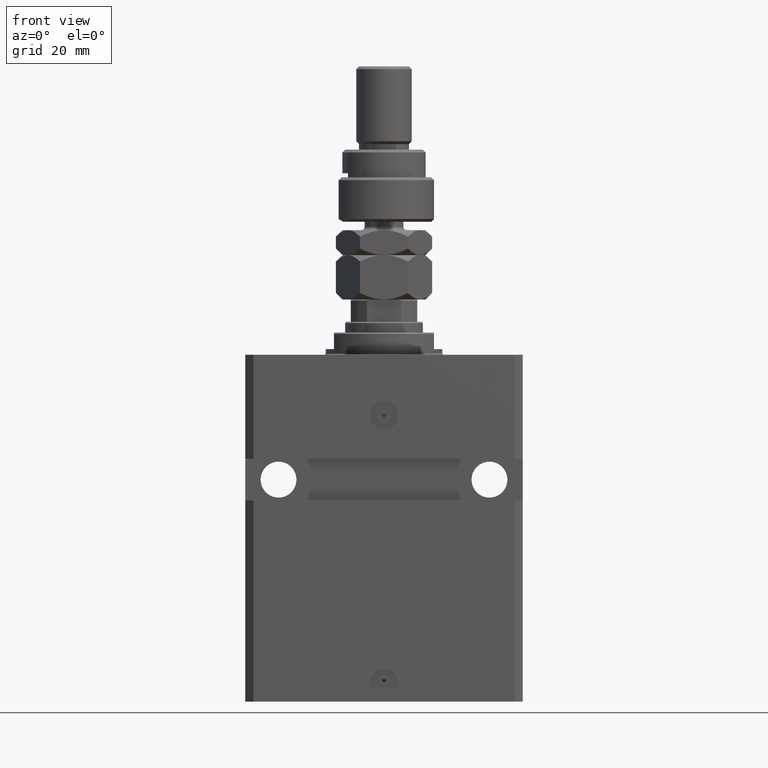
[diagram: clean part render]
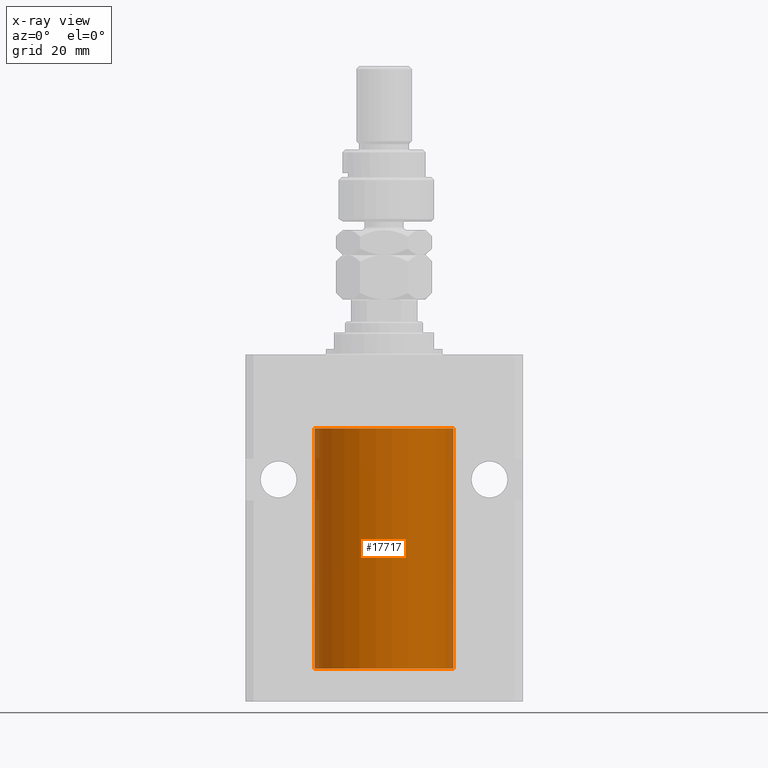
[diagram: x-ray — body ghosted, one internal face saturated and labeled with its STEP entity id]
A machine part, front view, then the same camera in x-ray: the body is ghosted and one INTERNAL B-rep face — a face not visible from any outside direction — is saturated and labeled: STEP entity #17717.
In plain terms, the highlighted cylindrical surface (partial cylindrical patch) has radius 25 mm, axis along (0, 0, 1).
Its self-contained STEP definition (entity closure, byte-faithful):
#454 = CARTESIAN_POINT ( 'NONE',  ( -24.99812796309119634, -0.3269516851027584048, -109.9429046887702128 ) ) ;
#697 = DIRECTION ( 'NONE',  ( -0.000000000000000000, -0.000000000000000000, 1.000000000000000000 ) ) ;
#1135 = CARTESIAN_POINT ( 'NONE',  ( 25.00000000000000000, -2.424731304940744339E-15, -111.1250000000000000 ) ) ;
#1331 = DIRECTION ( 'NONE',  ( -0.000000000000000000, -0.000000000000000000, 1.000000000000000000 ) ) ;
#1995 = CARTESIAN_POINT ( 'NONE',  ( -25.00000000000008171, 3.517566575222595158E-13, -111.1250000000032827 ) ) ;
#2157 = LINE ( 'NONE', #18161, #41108 ) ;
#2401 = CARTESIAN_POINT ( 'NONE',  ( 24.99813006673834792, -0.3267849812101329965, -111.0571664564703838 ) ) ;
#2504 = VERTEX_POINT ( 'NONE', #22029 ) ;
#2646 = CARTESIAN_POINT ( 'NONE',  ( 25.00000000000000000, -2.424731304940744339E-15, -111.1250000000000000 ) ) ;
#2750 = VERTEX_POINT ( 'NONE', #33833 ) ;
#3091 = CYLINDRICAL_SURFACE ( 'NONE', #21227, 25.00000000000000000 ) ;
#3096 = LINE ( 'NONE', #18099, #22707 ) ;
#5990 = ORIENTED_EDGE ( 'NONE', *, *, #14298, .F. ) ;
#6149 = AXIS2_PLACEMENT_3D ( 'NONE', #10529, #21366, #41993 ) ;
#6228 = B_SPLINE_CURVE_WITH_KNOTS ( 'NONE', 3,
 ( #37745, #9656, #30246, #2401, #37994, #2646 ),
 .UNSPECIFIED., .F., .F.,
 ( 4, 2, 4 ),
 ( 0.002931463836392422806, 0.003419622654026862815, 0.003907781471661302825 ),
 .UNSPECIFIED. ) ;
#6566 = DIRECTION ( 'NONE',  ( 0.000000000000000000, 0.000000000000000000, 1.000000000000000000 ) ) ;
#6842 = EDGE_CURVE ( 'NONE', #22670, #2750, #13117, .T. ) ;
#8179 = EDGE_CURVE ( 'NONE', #24788, #47848, #11077, .T. ) ;
#8993 = B_SPLINE_CURVE_WITH_KNOTS ( 'NONE', 3,
 ( #47409, #36318, #24728, #35793, #28319, #16470, #28582, #454, #32191, #39681 ),
 .UNSPECIFIED., .F., .F.,
 ( 4, 2, 2, 2, 4 ),
 ( 0.001954111766881341111, 0.002442529193076332407, 0.002930946619271323703, 0.003419364045466314998, 0.003907781471661306294 ),
 .UNSPECIFIED. ) ;
#9414 = DIRECTION ( 'NONE',  ( -0.000000000000000000, -0.000000000000000000, 1.000000000000000000 ) ) ;
#9656 = CARTESIAN_POINT ( 'NONE',  ( 24.99218627891525202, -0.6250000000000475175, -110.6647828774370765 ) ) ;
#10041 = ORIENTED_EDGE ( 'NONE', *, *, #46641, .T. ) ;
#10109 = DIRECTION ( 'NONE',  ( -0.000000000000000000, -0.000000000000000000, 1.000000000000000000 ) ) ;
#10366 = DIRECTION ( 'NONE',  ( -0.000000000000000000, -0.000000000000000000, 1.000000000000000000 ) ) ;
#10529 = CARTESIAN_POINT ( 'NONE',  ( 0.000000000000000000, 0.000000000000000000, -26.60000000000000142 ) ) ;
#11077 = CIRCLE ( 'NONE', #6149, 25.00000000000000000 ) ;
#13117 = B_SPLINE_CURVE_WITH_KNOTS ( 'NONE', 3,
 ( #36131, #36646, #36392, #20919, #24290, #24545 ),
 .UNSPECIFIED., .F., .F.,
 ( 4, 2, 4 ),
 ( 0.001954111766881289937, 0.002442787801636856371, 0.002931463836392422806 ),
 .UNSPECIFIED. ) ;
#14298 = EDGE_CURVE ( 'NONE', #46387, #29950, #49215, .T. ) ;
#14603 = AXIS2_PLACEMENT_3D ( 'NONE', #25921, #6566, #21795 ) ;
#15643 = CARTESIAN_POINT ( 'NONE',  ( 25.00000000000000000, 0.000000000000000000, -113.0999999999999943 ) ) ;
#16470 = CARTESIAN_POINT ( 'NONE',  ( -24.99218282981962247, -0.6251379207535883165, -110.3356756471091558 ) ) ;
#17717 = ADVANCED_FACE ( 'NONE', ( #26586 ), #3091, .F. ) ;
#18068 = VERTEX_POINT ( 'NONE', #1135 ) ;
#18099 = CARTESIAN_POINT ( 'NONE',  ( 25.00000000000000000, 0.000000000000000000, -113.0999999999999943 ) ) ;
#18161 = CARTESIAN_POINT ( 'NONE',  ( 25.00000000000000000, 0.000000000000000000, -113.0999999999999943 ) ) ;
#20317 = LINE ( 'NONE', #36039, #47289 ) ;
#20919 = CARTESIAN_POINT ( 'NONE',  ( 24.99405709967502887, -0.5571503051635591230, -110.1731998930932264 ) ) ;
#21046 = EDGE_CURVE ( 'NONE', #45756, #2504, #8993, .T. ) ;
#21227 = AXIS2_PLACEMENT_3D ( 'NONE', #33821, #10109, #45440 ) ;
#21366 = DIRECTION ( 'NONE',  ( 0.000000000000000000, 0.000000000000000000, 1.000000000000000000 ) ) ;
#21795 = DIRECTION ( 'NONE',  ( 1.000000000000000000, 0.000000000000000000, 0.000000000000000000 ) ) ;
#22029 = CARTESIAN_POINT ( 'NONE',  ( -25.00000000000000000, -2.540720905424995806E-14, -109.8750000000000000 ) ) ;
#22670 = VERTEX_POINT ( 'NONE', #43356 ) ;
#22707 = VECTOR ( 'NONE', #10366, 1000.000000000000000 ) ;
#24055 = CARTESIAN_POINT ( 'NONE',  ( -25.00000000000000000, 3.061616997868383043E-15, -26.60000000000000142 ) ) ;
#24290 = CARTESIAN_POINT ( 'NONE',  ( 24.99218627891525912, -0.6250000000000401901, -110.3350425307653211 ) ) ;
#24545 = CARTESIAN_POINT ( 'NONE',  ( 24.99218627891525912, -0.6250000000000438538, -110.5000000000000000 ) ) ;
#24728 = CARTESIAN_POINT ( 'NONE',  ( -24.99813644420120795, -0.3263088753891773552, -111.0574119792819374 ) ) ;
#24788 = VERTEX_POINT ( 'NONE', #24055 ) ;
#25649 = EDGE_CURVE ( 'NONE', #46387, #45756, #37441, .T. ) ;
#25769 = EDGE_CURVE ( 'NONE', #22670, #47848, #3096, .T. ) ;
#25921 = CARTESIAN_POINT ( 'NONE',  ( 0.000000000000000000, 0.000000000000000000, -113.0999999999999943 ) ) ;
#26586 = FACE_OUTER_BOUND ( 'NONE', #35032, .T. ) ;
#28319 = CARTESIAN_POINT ( 'NONE',  ( -24.99218973898648599, -0.6248616403601209290, -110.6653718335254695 ) ) ;
#28582 = CARTESIAN_POINT ( 'NONE',  ( -24.99404783808660824, -0.5575587241817697715, -110.1738392125429868 ) ) ;
#29950 = VERTEX_POINT ( 'NONE', #15643 ) ;
#30246 = CARTESIAN_POINT ( 'NONE',  ( 24.99405221541606892, -0.5573590499560032718, -110.8264563884999632 ) ) ;
#32191 = CARTESIAN_POINT ( 'NONE',  ( -25.00000000000000355, -0.1651503688830821270, -109.8750000000000142 ) ) ;
#32384 = CARTESIAN_POINT ( 'NONE',  ( 25.00000000000000000, 0.000000000000000000, -26.60000000000000142 ) ) ;
#33519 = ORIENTED_EDGE ( 'NONE', *, *, #37054, .T. ) ;
#33530 = CARTESIAN_POINT ( 'NONE',  ( -25.00000000000000000, 3.061616997868383043E-15, -113.0999999999999943 ) ) ;
#33821 = CARTESIAN_POINT ( 'NONE',  ( 0.000000000000000000, 0.000000000000000000, -113.0999999999999943 ) ) ;
#33833 = CARTESIAN_POINT ( 'NONE',  ( 24.99218627891525912, -0.6250000000000438538, -110.5000000000000000 ) ) ;
#34244 = ORIENTED_EDGE ( 'NONE', *, *, #8179, .T. ) ;
#35032 = EDGE_LOOP ( 'NONE', ( #5990, #42299, #37587, #10041, #34244, #42281, #38801, #33519, #42566 ) ) ;
#35793 = CARTESIAN_POINT ( 'NONE',  ( -24.99406145684571001, -0.5569515746258935085, -110.8270940848234858 ) ) ;
#36039 = CARTESIAN_POINT ( 'NONE',  ( -25.00000000000000000, 3.061616997868383043E-15, -113.0999999999999943 ) ) ;
#36131 = CARTESIAN_POINT ( 'NONE',  ( 25.00000000000008171, 3.486950403907965962E-13, -109.8749999999967315 ) ) ;
#36318 = CARTESIAN_POINT ( 'NONE',  ( -24.99999999999999645, -0.1631302912503610480, -111.1250000000001421 ) ) ;
#36392 = CARTESIAN_POINT ( 'NONE',  ( 24.99813432839964733, -0.3264764365875494345, -109.9426599702415359 ) ) ;
#36646 = CARTESIAN_POINT ( 'NONE',  ( 25.00000000000000000, -0.1632166659117597896, -109.8749999999998721 ) ) ;
#37054 = EDGE_CURVE ( 'NONE', #2750, #18068, #6228, .T. ) ;
#37441 = LINE ( 'NONE', #37700, #45770 ) ;
#37587 = ORIENTED_EDGE ( 'NONE', *, *, #21046, .T. ) ;
#37700 = CARTESIAN_POINT ( 'NONE',  ( -25.00000000000000000, 3.061616997868383043E-15, -113.0999999999999943 ) ) ;
#37745 = CARTESIAN_POINT ( 'NONE',  ( 24.99218627891525912, -0.6250000000000438538, -110.5000000000000000 ) ) ;
#37994 = CARTESIAN_POINT ( 'NONE',  ( 25.00000000000000000, -0.1650629246255838900, -111.1250000000000000 ) ) ;
#38801 = ORIENTED_EDGE ( 'NONE', *, *, #6842, .T. ) ;
#39681 = CARTESIAN_POINT ( 'NONE',  ( -25.00000000000000000, -2.540720905424995806E-14, -109.8750000000000000 ) ) ;
#41108 = VECTOR ( 'NONE', #9414, 1000.000000000000000 ) ;
#41993 = DIRECTION ( 'NONE',  ( 1.000000000000000000, 0.000000000000000000, 0.000000000000000000 ) ) ;
#42281 = ORIENTED_EDGE ( 'NONE', *, *, #25769, .F. ) ;
#42299 = ORIENTED_EDGE ( 'NONE', *, *, #25649, .T. ) ;
#42566 = ORIENTED_EDGE ( 'NONE', *, *, #49933, .F. ) ;
#43356 = CARTESIAN_POINT ( 'NONE',  ( 25.00000000000008171, 3.486950403907965962E-13, -109.8749999999967315 ) ) ;
#45440 = DIRECTION ( 'NONE',  ( 1.000000000000000000, 0.000000000000000000, 0.000000000000000000 ) ) ;
#45756 = VERTEX_POINT ( 'NONE', #1995 ) ;
#45770 = VECTOR ( 'NONE', #1331, 1000.000000000000000 ) ;
#46387 = VERTEX_POINT ( 'NONE', #33530 ) ;
#46641 = EDGE_CURVE ( 'NONE', #2504, #24788, #20317, .T. ) ;
#47289 = VECTOR ( 'NONE', #697, 1000.000000000000000 ) ;
#47409 = CARTESIAN_POINT ( 'NONE',  ( -25.00000000000008171, 3.517566575222595158E-13, -111.1250000000032827 ) ) ;
#47848 = VERTEX_POINT ( 'NONE', #32384 ) ;
#49215 = CIRCLE ( 'NONE', #14603, 25.00000000000000000 ) ;
#49933 = EDGE_CURVE ( 'NONE', #29950, #18068, #2157, .T. ) ;